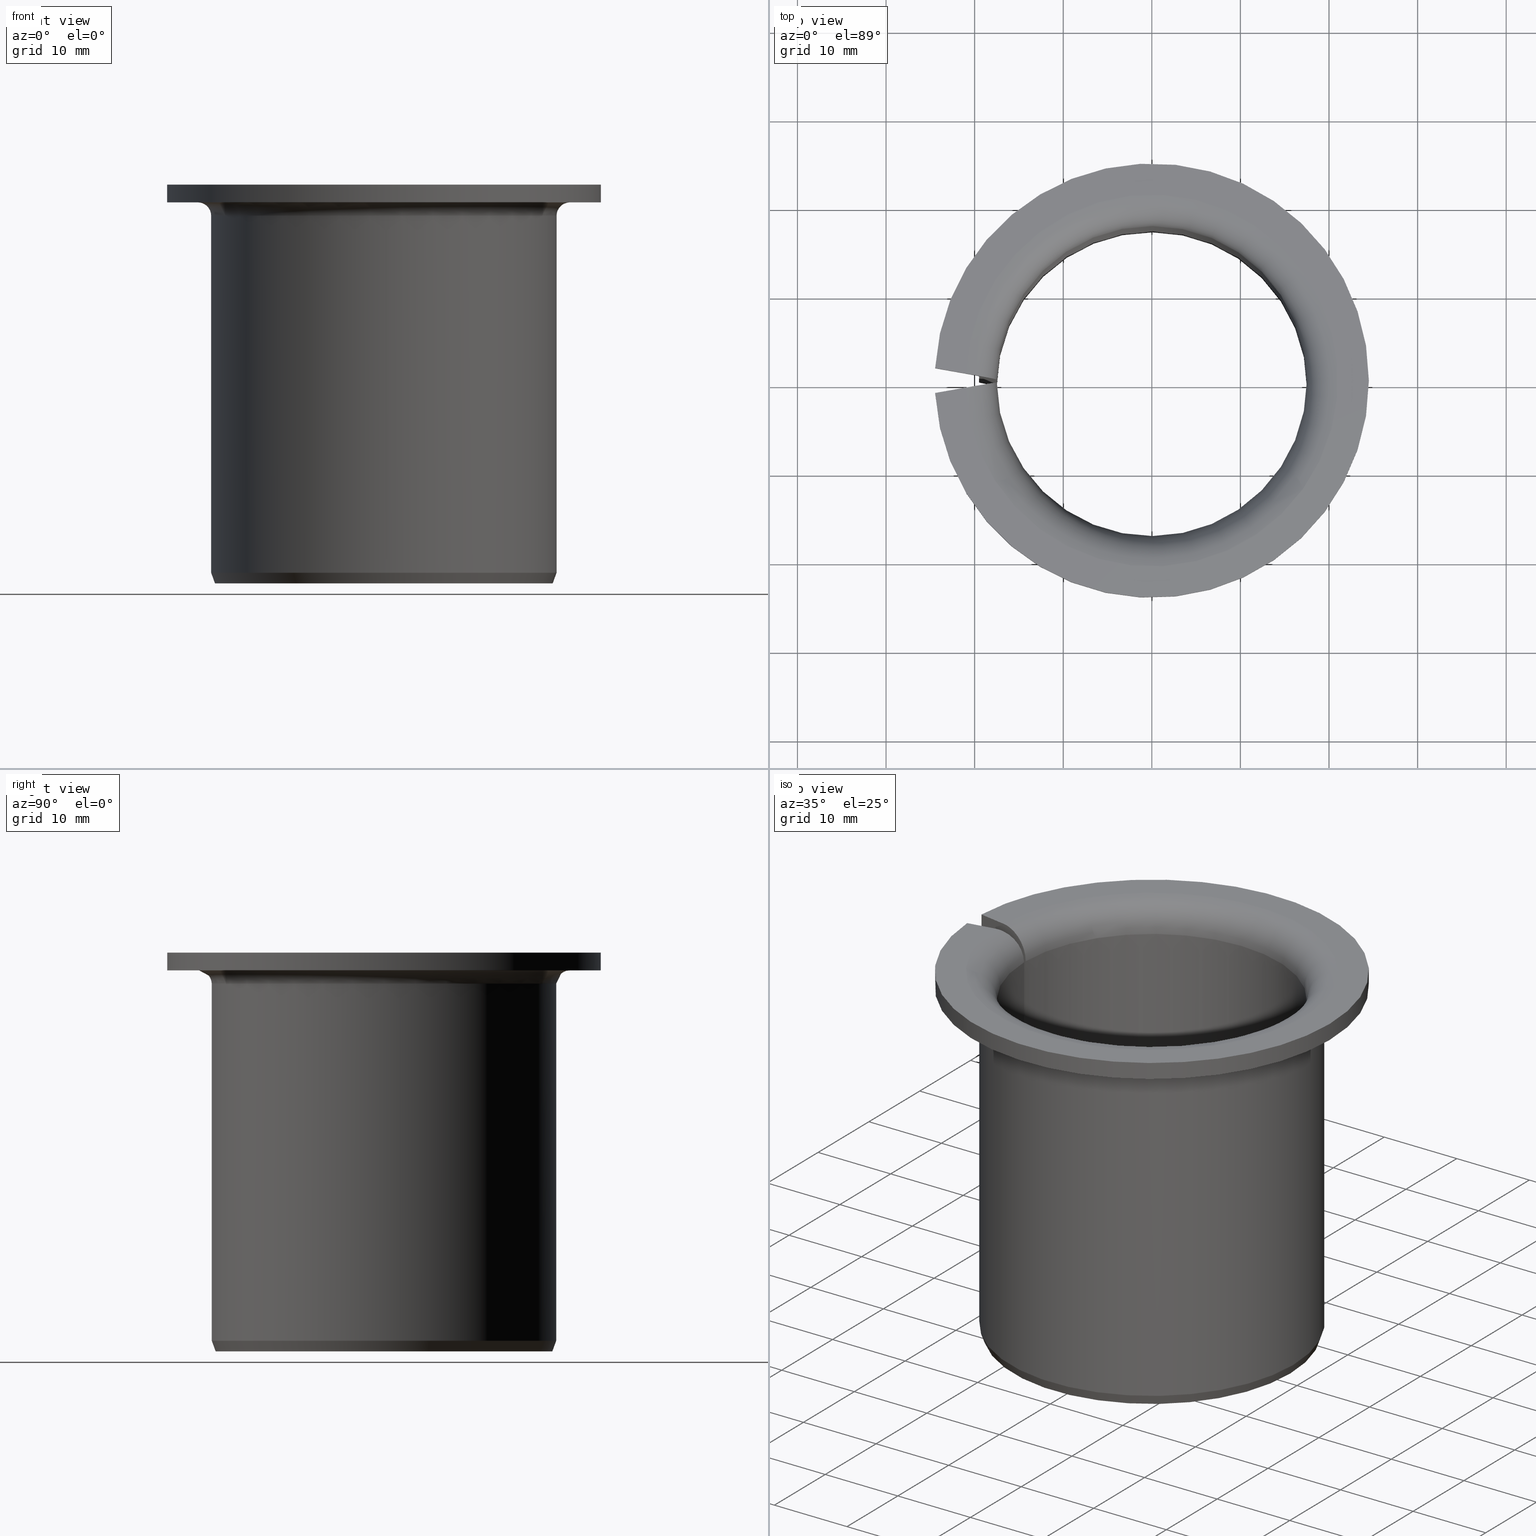
[diagram: canonical four-view strip — front | top / right | iso, engineering-drawing reading convention]
A machine part, canonical four-view strip (front | top / right | iso — engineering-drawing reading convention). The complete STEP part file that produces these views, byte-faithful:
ISO-10303-21;
HEADER;
FILE_DESCRIPTION(('STEP AP203'),'1');
FILE_NAME('410-BM3545F49LMB.stp','2016-09-19T15:15:20',(' '),(' '),'Spatial InterOp 3D',' ',' ');
FILE_SCHEMA(('CONFIG_CONTROL_DESIGN'));
ENDSEC;
DATA;
#1=DESIGN_CONTEXT('',#51,'design');
#2=APPLICATION_PROTOCOL_DEFINITION('INTERNATIONAL STANDARD','config_control_design',1994,#51);
#3=PRODUCT_CATEGORY_RELATIONSHIP('NONE','NONE',#52,#53);
#4=DATE_AND_TIME(#54,#55);
#5=DATE_TIME_ROLE('creation_date');
#6=DATE_TIME_ROLE('classification_date');
#7=PERSON_AND_ORGANIZATION_ROLE('creator');
#8=PERSON_AND_ORGANIZATION_ROLE('design_supplier');
#9=PERSON_AND_ORGANIZATION_ROLE('classification_officer');
#10=PERSON_AND_ORGANIZATION_ROLE('design_owner');
#11=APPROVAL_PERSON_ORGANIZATION(#56,#57,#58);
#12=APPROVAL_DATE_TIME(#4,#57);
#13=CC_DESIGN_APPROVAL(#57,(#59,#60,#61));
#14=CC_DESIGN_DATE_AND_TIME_ASSIGNMENT(#4,#5,(#61));
#15=CC_DESIGN_DATE_AND_TIME_ASSIGNMENT(#4,#6,(#59));
#16=CC_DESIGN_PERSON_AND_ORGANIZATION_ASSIGNMENT(#56,#10,(#62));
#17=CC_DESIGN_PERSON_AND_ORGANIZATION_ASSIGNMENT(#56,#7,(#61));
#18=CC_DESIGN_PERSON_AND_ORGANIZATION_ASSIGNMENT(#56,#7,(#60));
#19=CC_DESIGN_PERSON_AND_ORGANIZATION_ASSIGNMENT(#56,#8,(#60));
#20=CC_DESIGN_SECURITY_CLASSIFICATION(#59,(#60));
#21=CC_DESIGN_PERSON_AND_ORGANIZATION_ASSIGNMENT(#56,#9,(#59));
#22=SHAPE_DEFINITION_REPRESENTATION(#63,#64);
#23=DESIGN_CONTEXT('',#65,'design');
#24=APPLICATION_PROTOCOL_DEFINITION('INTERNATIONAL STANDARD','config_control_design',1994,#65);
#25=PRODUCT_CATEGORY_RELATIONSHIP('NONE','NONE',#66,#67);
#26=DATE_AND_TIME(#68,#69);
#27=DATE_TIME_ROLE('creation_date');
#28=DATE_TIME_ROLE('classification_date');
#29=PERSON_AND_ORGANIZATION_ROLE('creator');
#30=PERSON_AND_ORGANIZATION_ROLE('design_supplier');
#31=PERSON_AND_ORGANIZATION_ROLE('classification_officer');
#32=PERSON_AND_ORGANIZATION_ROLE('design_owner');
#33=APPROVAL_PERSON_ORGANIZATION(#70,#71,#72);
#34=APPROVAL_DATE_TIME(#26,#71);
#35=CC_DESIGN_APPROVAL(#71,(#73,#74,#75));
#36=CC_DESIGN_DATE_AND_TIME_ASSIGNMENT(#26,#27,(#75));
#37=CC_DESIGN_DATE_AND_TIME_ASSIGNMENT(#26,#28,(#73));
#38=CC_DESIGN_PERSON_AND_ORGANIZATION_ASSIGNMENT(#70,#32,(#76));
#39=CC_DESIGN_PERSON_AND_ORGANIZATION_ASSIGNMENT(#70,#29,(#75));
#40=CC_DESIGN_PERSON_AND_ORGANIZATION_ASSIGNMENT(#70,#29,(#74));
#41=CC_DESIGN_PERSON_AND_ORGANIZATION_ASSIGNMENT(#70,#30,(#74));
#42=CC_DESIGN_SECURITY_CLASSIFICATION(#73,(#74));
#43=CC_DESIGN_PERSON_AND_ORGANIZATION_ASSIGNMENT(#70,#31,(#73));
#44=CONTEXT_DEPENDENT_SHAPE_REPRESENTATION(#77,#78);
#45=SHAPE_DEFINITION_REPRESENTATION(#79,#80);
#46=SHAPE_REPRESENTATION_RELATIONSHIP('NONE','NONE',#80,#81);
#47= (GEOMETRIC_REPRESENTATION_CONTEXT(3)GLOBAL_UNCERTAINTY_ASSIGNED_CONTEXT((#84))GLOBAL_UNIT_ASSIGNED_CONTEXT((#86,#87,#88))REPRESENTATION_CONTEXT('NONE','WORKSPACE'));
#51=APPLICATION_CONTEXT('CONFIGURATION CONTROLLED 3D DESIGNS OF MECHANICAL PARTS AND ASSEMBLIES');
#52=PRODUCT_CATEGORY('part','NONE');
#53=PRODUCT_RELATED_PRODUCT_CATEGORY('detail',' ',(#62));
#54=CALENDAR_DATE(2016,19,8);
#55=LOCAL_TIME(17,15,20.0,#90);
#56=PERSON_AND_ORGANIZATION(#91,#92);
#57=APPROVAL(#93,'SOLID MODEL');
#58=APPROVAL_ROLE('APPROVED');
#59=SECURITY_CLASSIFICATION('','',#94);
#60=PRODUCT_DEFINITION_FORMATION_WITH_SPECIFIED_SOURCE(' ','NONE',#62,.NOT_KNOWN.);
#61=PRODUCT_DEFINITION('NONE','NONE',#60,#1);
#62=PRODUCT('','','PART--DESC',(#95));
#63=PRODUCT_DEFINITION_SHAPE('NONE','NONE',#61);
#64=SHAPE_REPRESENTATION('',(#96,#97),#98);
#65=APPLICATION_CONTEXT('CONFIGURATION CONTROLLED 3D DESIGNS OF MECHANICAL PARTS AND ASSEMBLIES');
#66=PRODUCT_CATEGORY('part','NONE');
#67=PRODUCT_RELATED_PRODUCT_CATEGORY('detail',' ',(#76));
#68=CALENDAR_DATE(2016,19,8);
#69=LOCAL_TIME(17,15,20.0,#99);
#70=PERSON_AND_ORGANIZATION(#100,#101);
#71=APPROVAL(#102,'SOLID MODEL');
#72=APPROVAL_ROLE('APPROVED');
#73=SECURITY_CLASSIFICATION('','',#103);
#74=PRODUCT_DEFINITION_FORMATION_WITH_SPECIFIED_SOURCE(' ','NONE',#76,.NOT_KNOWN.);
#75=PRODUCT_DEFINITION('410-BM3545F49LMB','410-BM3545F49LMB',#74,#23);
#76=PRODUCT('410-BM3545F49LMB','410-BM3545F49LMB','PART-410-BM3545F49LMB-DESC',(#104));
#77=(REPRESENTATION_RELATIONSHIP('','',#80,#64)REPRESENTATION_RELATIONSHIP_WITH_TRANSFORMATION(#107)SHAPE_REPRESENTATION_RELATIONSHIP());
#78=PRODUCT_DEFINITION_SHAPE('NAUO-PROD-DEF','NAUO-PROD-DEF',#109);
#79=PRODUCT_DEFINITION_SHAPE('NONE','NONE',#75);
#80=SHAPE_REPRESENTATION('410-BM3545F49LMB',(#96),#98);
#81=ADVANCED_BREP_SHAPE_REPRESENTATION('',(#110),#47);
#84=UNCERTAINTY_MEASURE_WITH_UNIT(LENGTH_MEASURE(1.0E-006),#86,'','');
#86= (CONVERSION_BASED_UNIT('METRE',#113)LENGTH_UNIT()NAMED_UNIT(#116));
#87= (NAMED_UNIT(#118)PLANE_ANGLE_UNIT()SI_UNIT($,.RADIAN.));
#88= (NAMED_UNIT(#118)SOLID_ANGLE_UNIT()SI_UNIT($,.STERADIAN.));
#90=COORDINATED_UNIVERSAL_TIME_OFFSET(1,0,.AHEAD.);
#91=PERSON('','UNSPECIFIED',$,$,$,$);
#92=ORGANIZATION('UNSPECIFIED','UNSPECIFIED','UNSPECIFIED');
#93=APPROVAL_STATUS('approved');
#94=SECURITY_CLASSIFICATION_LEVEL('unclassified');
#95=MECHANICAL_CONTEXT('',#51,'mechanical');
#96=AXIS2_PLACEMENT_3D('',#124,#125,#126);
#97=AXIS2_PLACEMENT_3D('',#127,#128,#129);
#98= (GEOMETRIC_REPRESENTATION_CONTEXT(3)GLOBAL_UNCERTAINTY_ASSIGNED_CONTEXT((#132))GLOBAL_UNIT_ASSIGNED_CONTEXT((#134,#135,#136))REPRESENTATION_CONTEXT('NONE','WORKSPACE'));
#99=COORDINATED_UNIVERSAL_TIME_OFFSET(1,0,.AHEAD.);
#100=PERSON('','UNSPECIFIED',$,$,$,$);
#101=ORGANIZATION('UNSPECIFIED','UNSPECIFIED','UNSPECIFIED');
#102=APPROVAL_STATUS('approved');
#103=SECURITY_CLASSIFICATION_LEVEL('unclassified');
#104=MECHANICAL_CONTEXT('',#65,'mechanical');
#107=ITEM_DEFINED_TRANSFORMATION('','',#96,#97);
#109=NEXT_ASSEMBLY_USAGE_OCCURRENCE('410-BM3545F49LMB','410-BM3545F49LMB','410-BM3545F49LMB',#61,#75,$);
#110=MANIFOLD_SOLID_BREP('',#138);
#113=LENGTH_MEASURE_WITH_UNIT(LENGTH_MEASURE(1.0),#139);
#116=DIMENSIONAL_EXPONENTS(1.0,0.0,0.0,0.0,0.0,0.0,0.0);
#118=DIMENSIONAL_EXPONENTS(0.0,0.0,0.0,0.0,0.0,0.0,0.0);
#124=CARTESIAN_POINT('',(0.0,0.0,0.0));
#125=DIRECTION('',(0.0,0.0,1.0));
#126=DIRECTION('',(1.0,0.0,0.0));
#127=CARTESIAN_POINT('',(0.0,0.0,0.0));
#128=DIRECTION('',(0.0,0.0,1.0));
#129=DIRECTION('',(-1.0,-7.6571373978539E-016,0.0));
#132=UNCERTAINTY_MEASURE_WITH_UNIT(LENGTH_MEASURE(1.0E-006),#134,'','');
#134= (CONVERSION_BASED_UNIT('METRE',#142)LENGTH_UNIT()NAMED_UNIT(#145));
#135= (NAMED_UNIT(#147)PLANE_ANGLE_UNIT()SI_UNIT($,.RADIAN.));
#136= (NAMED_UNIT(#147)SOLID_ANGLE_UNIT()SI_UNIT($,.STERADIAN.));
#138=CLOSED_SHELL('',(#153,#154,#155,#156,#157,#158,#159,#160,#161,#162,#163,#164));
#139= (NAMED_UNIT(#116)LENGTH_UNIT()SI_UNIT($,.METRE.));
#142=LENGTH_MEASURE_WITH_UNIT(LENGTH_MEASURE(1.0),#166);
#145=DIMENSIONAL_EXPONENTS(1.0,0.0,0.0,0.0,0.0,0.0,0.0);
#147=DIMENSIONAL_EXPONENTS(0.0,0.0,0.0,0.0,0.0,0.0,0.0);
#153=ADVANCED_FACE('',(#167),#168,.F.);
#154=ADVANCED_FACE('',(#169),#170,.F.);
#155=ADVANCED_FACE('',(#171),#172,.T.);
#156=ADVANCED_FACE('',(#173),#174,.F.);
#157=ADVANCED_FACE('',(#175),#176,.T.);
#158=ADVANCED_FACE('',(#177),#178,.T.);
#159=ADVANCED_FACE('',(#179),#180,.T.);
#160=ADVANCED_FACE('',(#181),#182,.T.);
#161=ADVANCED_FACE('',(#183),#184,.F.);
#162=ADVANCED_FACE('',(#185),#186,.T.);
#163=ADVANCED_FACE('',(#187),#188,.T.);
#164=ADVANCED_FACE('',(#189),#190,.T.);
#166= (NAMED_UNIT(#145)LENGTH_UNIT()SI_UNIT($,.METRE.));
#167=FACE_OUTER_BOUND('',#192,.T.);
#168=PLANE('',#193);
#169=FACE_OUTER_BOUND('',#194,.T.);
#170=CONICAL_SURFACE('',#195,0.0175,0.5235987755983);
#171=FACE_OUTER_BOUND('',#196,.T.);
#172=TOROIDAL_SURFACE('',#197,0.021,0.0035);
#173=FACE_OUTER_BOUND('',#198,.T.);
#174=TOROIDAL_SURFACE('',#199,0.021,0.0015);
#175=FACE_OUTER_BOUND('',#200,.T.);
#176=PLANE('',#201);
#177=FACE_OUTER_BOUND('',#202,.T.);
#178=CYLINDRICAL_SURFACE('',#203,0.0245);
#179=FACE_OUTER_BOUND('',#204,.T.);
#180=PLANE('',#205);
#181=FACE_OUTER_BOUND('',#206,.T.);
#182=CYLINDRICAL_SURFACE('',#207,0.0195);
#183=FACE_OUTER_BOUND('',#208,.T.);
#184=CYLINDRICAL_SURFACE('',#209,0.0175);
#185=FACE_OUTER_BOUND('',#210,.T.);
#186=PLANE('',#211);
#187=FACE_OUTER_BOUND('',#212,.T.);
#188=CONICAL_SURFACE('',#213,0.0190632357188806,0.349065850398868);
#189=FACE_OUTER_BOUND('',#214,.T.);
#190=PLANE('',#215);
#192=EDGE_LOOP('',(#216,#217,#218,#219,#220,#221,#222,#223,#224,#225));
#193=AXIS2_PLACEMENT_3D('',#226,#227,#228);
#194=EDGE_LOOP('',(#229,#230,#231,#232));
#195=AXIS2_PLACEMENT_3D('',#233,#234,#235);
#196=EDGE_LOOP('',(#236,#237,#238,#239));
#197=AXIS2_PLACEMENT_3D('',#240,#241,#242);
#198=EDGE_LOOP('',(#243,#244,#245,#246));
#199=AXIS2_PLACEMENT_3D('',#247,#248,#249);
#200=EDGE_LOOP('',(#250,#251,#252,#253));
#201=AXIS2_PLACEMENT_3D('',#254,#255,#256);
#202=EDGE_LOOP('',(#257,#258,#259,#260));
#203=AXIS2_PLACEMENT_3D('',#261,#262,#263);
#204=EDGE_LOOP('',(#264,#265,#266,#267));
#205=AXIS2_PLACEMENT_3D('',#268,#269,#270);
#206=EDGE_LOOP('',(#271,#272,#273,#274));
#207=AXIS2_PLACEMENT_3D('',#275,#276,#277);
#208=EDGE_LOOP('',(#278,#279,#280,#281));
#209=AXIS2_PLACEMENT_3D('',#282,#283,#284);
#210=EDGE_LOOP('',(#285,#286,#287,#288));
#211=AXIS2_PLACEMENT_3D('',#289,#290,#291);
#212=EDGE_LOOP('',(#292,#293,#294,#295));
#213=AXIS2_PLACEMENT_3D('',#296,#297,#298);
#214=EDGE_LOOP('',(#299,#300,#301,#302,#303,#304,#305,#306,#307,#308));
#215=AXIS2_PLACEMENT_3D('',#309,#310,#311);
#216=ORIENTED_EDGE('',*,*,#312,.T.);
#217=ORIENTED_EDGE('',*,*,#313,.F.);
#218=ORIENTED_EDGE('',*,*,#314,.T.);
#219=ORIENTED_EDGE('',*,*,#315,.T.);
#220=ORIENTED_EDGE('',*,*,#316,.T.);
#221=ORIENTED_EDGE('',*,*,#317,.T.);
#222=ORIENTED_EDGE('',*,*,#318,.T.);
#223=ORIENTED_EDGE('',*,*,#319,.F.);
#224=ORIENTED_EDGE('',*,*,#320,.T.);
#225=ORIENTED_EDGE('',*,*,#321,.T.);
#226=CARTESIAN_POINT('',(0.00579044144318367,0.00188838412504393,-8.38432005932489E-019));
#227=DIRECTION('',(-0.173648177666931,-0.984807753012208,7.70988211545248E-017));
#228=DIRECTION('',(-1.33880697937518E-017,-7.59275168210777E-017,-1.0));
#229=ORIENTED_EDGE('',*,*,#322,.T.);
#230=ORIENTED_EDGE('',*,*,#323,.T.);
#231=ORIENTED_EDGE('',*,*,#324,.F.);
#232=ORIENTED_EDGE('',*,*,#320,.F.);
#233=CARTESIAN_POINT('',(0.0,0.0,0.0005));
#234=DIRECTION('',(0.0,-6.12323399573677E-017,-1.0));
#235=DIRECTION('',(0.0,1.0,-6.12323399573677E-017));
#236=ORIENTED_EDGE('',*,*,#325,.T.);
#237=ORIENTED_EDGE('',*,*,#326,.T.);
#238=ORIENTED_EDGE('',*,*,#327,.F.);
#239=ORIENTED_EDGE('',*,*,#312,.F.);
#240=CARTESIAN_POINT('',(0.0,3.46944695195362E-018,0.0415));
#241=DIRECTION('',(0.0,-6.12323399573677E-017,-1.0));
#242=DIRECTION('',(0.0,1.0,-6.12323399573677E-017));
#243=ORIENTED_EDGE('',*,*,#328,.T.);
#244=ORIENTED_EDGE('',*,*,#329,.T.);
#245=ORIENTED_EDGE('',*,*,#330,.F.);
#246=ORIENTED_EDGE('',*,*,#316,.F.);
#247=CARTESIAN_POINT('',(0.0,3.46944695195362E-018,0.0415));
#248=DIRECTION('',(0.0,-6.12323399573677E-017,-1.0));
#249=DIRECTION('',(0.0,1.0,-6.12323399573677E-017));
#250=ORIENTED_EDGE('',*,*,#331,.T.);
#251=ORIENTED_EDGE('',*,*,#332,.T.);
#252=ORIENTED_EDGE('',*,*,#328,.F.);
#253=ORIENTED_EDGE('',*,*,#315,.F.);
#254=CARTESIAN_POINT('',(0.021,3.46944695195362E-018,0.043));
#255=DIRECTION('',(0.0,-6.12323399573677E-017,-1.0));
#256=DIRECTION('',(0.0,1.0,-6.12323399573677E-017));
#257=ORIENTED_EDGE('',*,*,#333,.T.);
#258=ORIENTED_EDGE('',*,*,#334,.T.);
#259=ORIENTED_EDGE('',*,*,#331,.F.);
#260=ORIENTED_EDGE('',*,*,#314,.F.);
#261=CARTESIAN_POINT('',(0.0,0.0,0.0));
#262=DIRECTION('',(0.0,-6.12323399573677E-017,-1.0));
#263=DIRECTION('',(0.0,1.0,-6.12323399573677E-017));
#264=ORIENTED_EDGE('',*,*,#327,.T.);
#265=ORIENTED_EDGE('',*,*,#335,.F.);
#266=ORIENTED_EDGE('',*,*,#333,.F.);
#267=ORIENTED_EDGE('',*,*,#313,.T.);
#268=CARTESIAN_POINT('',(0.0245,3.46944695195362E-018,0.045));
#269=DIRECTION('',(0.0,6.12323399573677E-017,1.0));
#270=DIRECTION('',(0.0,-1.0,6.12323399573677E-017));
#271=ORIENTED_EDGE('',*,*,#330,.T.);
#272=ORIENTED_EDGE('',*,*,#336,.T.);
#273=ORIENTED_EDGE('',*,*,#337,.F.);
#274=ORIENTED_EDGE('',*,*,#317,.F.);
#275=CARTESIAN_POINT('',(0.0,0.0,0.0));
#276=DIRECTION('',(0.0,-6.12323399573677E-017,-1.0));
#277=DIRECTION('',(0.0,1.0,-6.12323399573677E-017));
#278=ORIENTED_EDGE('',*,*,#324,.T.);
#279=ORIENTED_EDGE('',*,*,#338,.T.);
#280=ORIENTED_EDGE('',*,*,#325,.F.);
#281=ORIENTED_EDGE('',*,*,#321,.F.);
#282=CARTESIAN_POINT('',(0.0,0.0,0.0));
#283=DIRECTION('',(0.0,-6.12323399573677E-017,-1.0));
#284=DIRECTION('',(0.0,1.0,-6.12323399573677E-017));
#285=ORIENTED_EDGE('',*,*,#339,.T.);
#286=ORIENTED_EDGE('',*,*,#340,.F.);
#287=ORIENTED_EDGE('',*,*,#322,.F.);
#288=ORIENTED_EDGE('',*,*,#319,.T.);
#289=CARTESIAN_POINT('',(0.0177886751345948,0.0,-1.40641510942143E-020));
#290=DIRECTION('',(0.0,-6.12323399573677E-017,-1.0));
#291=DIRECTION('',(0.0,1.0,-6.12323399573677E-017));
#292=ORIENTED_EDGE('',*,*,#337,.T.);
#293=ORIENTED_EDGE('',*,*,#341,.T.);
#294=ORIENTED_EDGE('',*,*,#339,.F.);
#295=ORIENTED_EDGE('',*,*,#318,.F.);
#296=CARTESIAN_POINT('',(0.0,0.0,-2.81283021884286E-020));
#297=DIRECTION('',(-0.0,6.12323399573677E-017,1.0));
#298=DIRECTION('',(0.0,-1.0,6.12323399573677E-017));
#299=ORIENTED_EDGE('',*,*,#338,.F.);
#300=ORIENTED_EDGE('',*,*,#323,.F.);
#301=ORIENTED_EDGE('',*,*,#340,.T.);
#302=ORIENTED_EDGE('',*,*,#341,.F.);
#303=ORIENTED_EDGE('',*,*,#336,.F.);
#304=ORIENTED_EDGE('',*,*,#329,.F.);
#305=ORIENTED_EDGE('',*,*,#332,.F.);
#306=ORIENTED_EDGE('',*,*,#334,.F.);
#307=ORIENTED_EDGE('',*,*,#335,.T.);
#308=ORIENTED_EDGE('',*,*,#326,.F.);
#309=CARTESIAN_POINT('',(0.00579044144318367,-0.00188838412504393,-6.10685012971472E-019));
#310=DIRECTION('',(0.173648177666931,-0.984807753012208,7.34060592085496E-017));
#311=DIRECTION('',(-7.87769870200591E-018,-7.59275168210776E-017,-1.0));
#312=EDGE_CURVE('',#342,#343,#344,.T.);
#313=EDGE_CURVE('',#345,#343,#346,.T.);
#314=EDGE_CURVE('',#345,#347,#348,.T.);
#315=EDGE_CURVE('',#347,#349,#350,.T.);
#316=EDGE_CURVE('',#349,#351,#352,.T.);
#317=EDGE_CURVE('',#351,#353,#354,.T.);
#318=EDGE_CURVE('',#353,#355,#356,.T.);
#319=EDGE_CURVE('',#357,#355,#358,.T.);
#320=EDGE_CURVE('',#357,#359,#360,.T.);
#321=EDGE_CURVE('',#359,#342,#361,.F.);
#322=EDGE_CURVE('',#357,#362,#363,.T.);
#323=EDGE_CURVE('',#362,#364,#365,.T.);
#324=EDGE_CURVE('',#359,#364,#366,.T.);
#325=EDGE_CURVE('',#342,#367,#368,.T.);
#326=EDGE_CURVE('',#367,#369,#370,.T.);
#327=EDGE_CURVE('',#343,#369,#371,.T.);
#328=EDGE_CURVE('',#349,#372,#373,.T.);
#329=EDGE_CURVE('',#372,#374,#375,.T.);
#330=EDGE_CURVE('',#351,#374,#376,.T.);
#331=EDGE_CURVE('',#347,#377,#378,.T.);
#332=EDGE_CURVE('',#377,#372,#379,.T.);
#333=EDGE_CURVE('',#345,#380,#381,.T.);
#334=EDGE_CURVE('',#380,#377,#382,.T.);
#335=EDGE_CURVE('',#380,#369,#383,.T.);
#336=EDGE_CURVE('',#374,#384,#385,.T.);
#337=EDGE_CURVE('',#353,#384,#386,.T.);
#338=EDGE_CURVE('',#364,#367,#387,.F.);
#339=EDGE_CURVE('',#355,#388,#389,.T.);
#340=EDGE_CURVE('',#362,#388,#390,.T.);
#341=EDGE_CURVE('',#384,#388,#391,.T.);
#342=VERTEX_POINT('',#392);
#343=VERTEX_POINT('',#393);
#344=B_SPLINE_CURVE_WITH_KNOTS('',3,(#394,#395,#396,#397,#398,#399,#400,#401,#402,#403,#404,#405,#406,#407,#408,#409,#410,#411),.UNSPECIFIED.,.F.,.F.,(4,2,2,2,2,2,2,2,4),(1.97144213445343E-007,0.000687440077086563,0.00137468300995968,0.0020619259428328,0.00274916887570591,0.00343641180857903,0.00412365474145215,0.00481089767432527,0.00549814060719838),.UNSPECIFIED.);
#345=VERTEX_POINT('',#412);
#346=LINE('',#413,#414);
#347=VERTEX_POINT('',#415);
#348=LINE('',#416,#417);
#349=VERTEX_POINT('',#418);
#350=LINE('',#419,#420);
#351=VERTEX_POINT('',#421);
#352=B_SPLINE_CURVE_WITH_KNOTS('',3,(#422,#423,#424,#425,#426,#427,#428,#429,#430,#431,#432,#433,#434,#435),.UNSPECIFIED.,.F.,.F.,(4,2,2,2,2,2,4),(1.51253615729084E-005,0.000309526954499271,0.000603928547425633,0.000898330140351995,0.00119273173327836,0.00178153491913109,0.00237033810498382),.UNSPECIFIED.);
#353=VERTEX_POINT('',#436);
#354=LINE('',#437,#438);
#355=VERTEX_POINT('',#439);
#356=B_SPLINE_CURVE_WITH_KNOTS('',3,(#440,#441,#442,#443),.UNSPECIFIED.,.F.,.F.,(4,4),(2.13110061065573E-007,0.00127891205483751),.UNSPECIFIED.);
#357=VERTEX_POINT('',#444);
#358=LINE('',#445,#446);
#359=VERTEX_POINT('',#447);
#360=B_SPLINE_CURVE_WITH_KNOTS('',3,(#448,#449,#450,#451),.UNSPECIFIED.,.F.,.F.,(4,4),(2.31707683946212E-007,0.000579533393781442),.UNSPECIFIED.);
#361=LINE('',#452,#453);
#362=VERTEX_POINT('',#454);
#363=CIRCLE('',#455,0.0177886751345948);
#364=VERTEX_POINT('',#456);
#365=B_SPLINE_CURVE_WITH_KNOTS('',3,(#457,#458,#459,#460),.UNSPECIFIED.,.F.,.F.,(4,4),(2.3170768394626E-007,0.000579533393781442),.UNSPECIFIED.);
#366=CIRCLE('',#461,0.0175);
#367=VERTEX_POINT('',#462);
#368=CIRCLE('',#463,0.0175);
#369=VERTEX_POINT('',#464);
#370=B_SPLINE_CURVE_WITH_KNOTS('',3,(#465,#466,#467,#468,#469,#470,#471,#472,#473,#474,#475,#476,#477,#478,#479,#480,#481,#482),.UNSPECIFIED.,.F.,.F.,(4,2,2,2,2,2,2,2,4),(1.97144213445343E-007,0.000687440077086563,0.00137468300995968,0.0020619259428328,0.00274916887570591,0.00343641180857903,0.00412365474145215,0.00481089767432527,0.00549814060719838),.UNSPECIFIED.);
#371=CIRCLE('',#483,0.021);
#372=VERTEX_POINT('',#484);
#373=CIRCLE('',#485,0.021);
#374=VERTEX_POINT('',#486);
#375=B_SPLINE_CURVE_WITH_KNOTS('',3,(#487,#488,#489,#490,#491,#492,#493,#494,#495,#496,#497,#498,#499,#500),.UNSPECIFIED.,.F.,.F.,(4,2,2,2,2,2,4),(1.5125361572905E-005,0.000309526954499271,0.000603928547425637,0.000898330140352003,0.00119273173327837,0.00178153491913109,0.00237033810498382),.UNSPECIFIED.);
#376=CIRCLE('',#501,0.0195);
#377=VERTEX_POINT('',#502);
#378=CIRCLE('',#503,0.0245);
#379=LINE('',#504,#505);
#380=VERTEX_POINT('',#506);
#381=CIRCLE('',#507,0.0245);
#382=LINE('',#508,#509);
#383=LINE('',#510,#511);
#384=VERTEX_POINT('',#512);
#385=LINE('',#513,#514);
#386=CIRCLE('',#515,0.0195);
#387=LINE('',#516,#517);
#388=VERTEX_POINT('',#518);
#389=CIRCLE('',#519,0.0190632357188806);
#390=LINE('',#520,#521);
#391=B_SPLINE_CURVE_WITH_KNOTS('',3,(#522,#523,#524,#525),.UNSPECIFIED.,.F.,.F.,(4,4),(2.13110061065573E-007,0.00127891205483751),.UNSPECIFIED.);
#392=CARTESIAN_POINT('',(0.0174991132321836,-0.00017617061961681,0.0415));
#393=CARTESIAN_POINT('',(0.0209851033973357,-0.000790844740217479,0.045));
#394=CARTESIAN_POINT('',(0.0174991132321836,-0.00017617061961681,0.0415));
#395=CARTESIAN_POINT('',(0.0174991132321836,-0.00017617061961681,0.0417323982433262));
#396=CARTESIAN_POINT('',(0.0175219915246278,-0.000180204679847264,0.0419608286907469));
#397=CARTESIAN_POINT('',(0.0176115516317167,-0.000195996543122176,0.0424100927146044));
#398=CARTESIAN_POINT('',(0.0176793702412228,-0.000207954793772221,0.0426333091566987));
#399=CARTESIAN_POINT('',(0.0178558280399616,-0.000239069064646299,0.0430579143322747));
#400=CARTESIAN_POINT('',(0.0179637108656093,-0.000258091717563064,0.0432591604718311));
#401=CARTESIAN_POINT('',(0.0182183242230214,-0.000302986922123581,0.0436397987129509));
#402=CARTESIAN_POINT('',(0.0183660376656832,-0.000329032787478187,0.0438194058246123));
#403=CARTESIAN_POINT('',(0.0186881199836871,-0.000385824590151397,0.0441411182028783));
#404=CARTESIAN_POINT('',(0.0188637408973689,-0.000416791295610176,0.0442854588727117));
#405=CARTESIAN_POINT('',(0.0192448446075499,-0.000483990162163181,0.0445403135456875));
#406=CARTESIAN_POINT('',(0.0194463331129644,-0.00051951802197039,0.0446478702901084));
#407=CARTESIAN_POINT('',(0.0198640024898423,-0.000593164402129645,0.0448212989317011));
#408=CARTESIAN_POINT('',(0.0200828561623802,-0.000631754209425211,0.0448881397067106));
#409=CARTESIAN_POINT('',(0.0205302421854552,-0.000710640436085193,0.0449775381628516));
#410=CARTESIAN_POINT('',(0.0207564185715369,-0.000750521435350542,0.045));
#411=CARTESIAN_POINT('',(0.0209851033973357,-0.000790844740217481,0.045));
#412=CARTESIAN_POINT('',(0.0244597654861355,-0.00140352141531771,0.045));
#413=CARTESIAN_POINT('',(0.0302873085421709,-0.00243107448733702,0.045));
#414=VECTOR('',#526,1.0);
#415=CARTESIAN_POINT('',(0.0244597654861355,-0.00140352141531771,0.043));
#416=CARTESIAN_POINT('',(0.0244597654861355,-0.00140352141531771,3.78149717724513E-020));
#417=VECTOR('',#527,1.0);
#418=CARTESIAN_POINT('',(0.0209851033973357,-0.000790844740217477,0.043));
#419=CARTESIAN_POINT('',(0.0208643083967683,-0.000769545322482749,0.043));
#420=VECTOR('',#528,1.0);
#421=CARTESIAN_POINT('',(0.0194928579205826,-0.00052772160082575,0.0415));
#422=CARTESIAN_POINT('',(0.0209851033973357,-0.00079084474021748,0.043));
#423=CARTESIAN_POINT('',(0.020887234603486,-0.000773587831292375,0.043));
#424=CARTESIAN_POINT('',(0.0207908761436344,-0.000756597235001041,0.0429904013861209));
#425=CARTESIAN_POINT('',(0.0206010739036773,-0.000723129979097698,0.0429526805169067));
#426=CARTESIAN_POINT('',(0.0205066387155741,-0.000706478507506823,0.0429240876814515));
#427=CARTESIAN_POINT('',(0.0203266420344327,-0.000674740236183612,0.0428494867840182));
#428=CARTESIAN_POINT('',(0.0202411221118634,-0.000659660766446539,0.0428037852975727));
#429=CARTESIAN_POINT('',(0.0200790171185027,-0.000631077282409482,0.0426956214893007));
#430=CARTESIAN_POINT('',(0.0200021474508167,-0.000617523085998349,0.0426325952962743));
#431=CARTESIAN_POINT('',(0.0197951778992534,-0.00058102876987261,0.0424257879324392));
#432=CARTESIAN_POINT('',(0.0196832067906457,-0.00056128524236524,0.0422585812978061));
#433=CARTESIAN_POINT('',(0.0195329495153544,-0.00053479083068364,0.0418969470921935));
#434=CARTESIAN_POINT('',(0.0194928579205806,-0.000527721600825395,0.0416991392971471));
#435=CARTESIAN_POINT('',(0.0194928579205806,-0.00052772160082539,0.0415000000000002));
#436=CARTESIAN_POINT('',(0.0194928579205826,-0.000527721600825753,0.0012));
#437=CARTESIAN_POINT('',(0.0194928579205826,-0.000527721600825752,-1.58123002031201E-020));
#438=VECTOR('',#529,1.0);
#439=CARTESIAN_POINT('',(0.0190578994383718,-0.000451026684923966,6.43083039248804E-019));
#440=CARTESIAN_POINT('',(0.0194928579205827,-0.000527721600825755,0.0012));
#441=CARTESIAN_POINT('',(0.0193479040463929,-0.000502162321847883,0.000799987934916398));
#442=CARTESIAN_POINT('',(0.0192029186392597,-0.000476597482761293,0.000399987650145253));
#443=CARTESIAN_POINT('',(0.0190578994383717,-0.000451026684923968,4.89730107023086E-018));
#444=CARTESIAN_POINT('',(0.0177872270566494,-0.000226972860385233,6.43083039248804E-019));
#445=CARTESIAN_POINT('',(0.0165,0.0,6.43083039248804E-019));
#446=VECTOR('',#530,1.0);
#447=CARTESIAN_POINT('',(0.0174991132321836,-0.000176170619616813,0.0005));
#448=CARTESIAN_POINT('',(0.0177872270566494,-0.000226972860385233,-3.34519270381092E-019));
#449=CARTESIAN_POINT('',(0.0176912048363039,-0.000210041552190785,0.000166676006251675));
#450=CARTESIAN_POINT('',(0.0175951671585202,-0.00019310751843293,0.000333342831684055));
#451=CARTESIAN_POINT('',(0.0174991132321836,-0.000176170619616813,0.000500000000000008));
#452=CARTESIAN_POINT('',(0.0174991132321836,-0.000176170619616813,-3.7338589396852E-020));
#453=VECTOR('',#531,1.0);
#454=CARTESIAN_POINT('',(0.0177872270566494,0.000226972860385233,6.15709166660622E-019));
#455=AXIS2_PLACEMENT_3D('',#532,#533,#534);
#456=CARTESIAN_POINT('',(0.0174991132321836,0.000176170619616813,0.0005));
#457=CARTESIAN_POINT('',(0.0177872270566494,0.000226972860385233,-3.54897581537848E-019));
#458=CARTESIAN_POINT('',(0.0176912048363039,0.000210041552190786,0.000166676006251675));
#459=CARTESIAN_POINT('',(0.0175951671585202,0.00019310751843293,0.000333342831684055));
#460=CARTESIAN_POINT('',(0.0174991132321836,0.000176170619616813,0.000500000000000008));
#461=AXIS2_PLACEMENT_3D('',#535,#536,#537);
#462=CARTESIAN_POINT('',(0.0174991132321836,0.000176170619616816,0.0415));
#463=AXIS2_PLACEMENT_3D('',#538,#539,#540);
#464=CARTESIAN_POINT('',(0.0209851033973357,0.000790844740217487,0.045));
#465=CARTESIAN_POINT('',(0.0174991132321836,0.000176170619616817,0.0415));
#466=CARTESIAN_POINT('',(0.0174991132321836,0.000176170619616817,0.0417323982433262));
#467=CARTESIAN_POINT('',(0.0175219915246278,0.00018020467984727,0.0419608286907469));
#468=CARTESIAN_POINT('',(0.0176115516317167,0.000195996543122183,0.0424100927146044));
#469=CARTESIAN_POINT('',(0.0176793702412228,0.000207954793772227,0.0426333091566987));
#470=CARTESIAN_POINT('',(0.0178558280399616,0.000239069064646306,0.0430579143322747));
#471=CARTESIAN_POINT('',(0.0179637108656093,0.00025809171756307,0.0432591604718311));
#472=CARTESIAN_POINT('',(0.0182183242230214,0.000302986922123587,0.0436397987129509));
#473=CARTESIAN_POINT('',(0.0183660376656832,0.000329032787478194,0.0438194058246123));
#474=CARTESIAN_POINT('',(0.0186881199836871,0.000385824590151403,0.0441411182028783));
#475=CARTESIAN_POINT('',(0.0188637408973689,0.000416791295610183,0.0442854588727117));
#476=CARTESIAN_POINT('',(0.0192448446075499,0.000483990162163188,0.0445403135456875));
#477=CARTESIAN_POINT('',(0.0194463331129644,0.000519518021970397,0.0446478702901084));
#478=CARTESIAN_POINT('',(0.0198640024898423,0.000593164402129652,0.0448212989317011));
#479=CARTESIAN_POINT('',(0.0200828561623802,0.000631754209425218,0.0448881397067106));
#480=CARTESIAN_POINT('',(0.0205302421854552,0.0007106404360852,0.0449775381628516));
#481=CARTESIAN_POINT('',(0.0207564185715369,0.000750521435350548,0.045));
#482=CARTESIAN_POINT('',(0.0209851033973357,0.000790844740217488,0.045));
#483=AXIS2_PLACEMENT_3D('',#541,#542,#543);
#484=CARTESIAN_POINT('',(0.0209851033973357,0.000790844740217485,0.043));
#485=AXIS2_PLACEMENT_3D('',#544,#545,#546);
#486=CARTESIAN_POINT('',(0.0194928579205826,0.000527721600825756,0.0415));
#487=CARTESIAN_POINT('',(0.0209851033973357,0.000790844740217488,0.043));
#488=CARTESIAN_POINT('',(0.020887234603486,0.000773587831292382,0.043));
#489=CARTESIAN_POINT('',(0.0207908761436344,0.000756597235001048,0.0429904013861209));
#490=CARTESIAN_POINT('',(0.0206010739036773,0.000723129979097705,0.0429526805169067));
#491=CARTESIAN_POINT('',(0.0205066387155741,0.000706478507506831,0.0429240876814515));
#492=CARTESIAN_POINT('',(0.0203266420344327,0.000674740236183619,0.0428494867840181));
#493=CARTESIAN_POINT('',(0.0202411221118634,0.000659660766446547,0.0428037852975727));
#494=CARTESIAN_POINT('',(0.0200790171185027,0.000631077282409489,0.0426956214893007));
#495=CARTESIAN_POINT('',(0.0200021474508167,0.000617523085998355,0.0426325952962743));
#496=CARTESIAN_POINT('',(0.0197951778992534,0.000581028769872617,0.0424257879324392));
#497=CARTESIAN_POINT('',(0.0196832067906457,0.000561285242365247,0.0422585812978061));
#498=CARTESIAN_POINT('',(0.0195329495153544,0.000534790830683647,0.0418969470921935));
#499=CARTESIAN_POINT('',(0.0194928579205806,0.000527721600825401,0.0416991392971471));
#500=CARTESIAN_POINT('',(0.0194928579205806,0.000527721600825396,0.0415000000000002));
#501=AXIS2_PLACEMENT_3D('',#547,#548,#549);
#502=CARTESIAN_POINT('',(0.0244597654861355,0.00140352141531772,0.043));
#503=AXIS2_PLACEMENT_3D('',#550,#551,#552);
#504=CARTESIAN_POINT('',(0.0208643083967683,0.000769545322482756,0.043));
#505=VECTOR('',#553,1.0);
#506=CARTESIAN_POINT('',(0.0244597654861355,0.00140352141531772,0.045));
#507=AXIS2_PLACEMENT_3D('',#554,#555,#556);
#508=CARTESIAN_POINT('',(0.0244597654861355,0.00140352141531772,-4.83954545833115E-020));
#509=VECTOR('',#557,1.0);
#510=CARTESIAN_POINT('',(0.0302873085421709,0.00243107448733703,0.045));
#511=VECTOR('',#558,1.0);
#512=CARTESIAN_POINT('',(0.0194928579205826,0.000527721600825755,0.0012));
#513=CARTESIAN_POINT('',(0.0194928579205826,0.000527721600825753,5.23181739225989E-021));
#514=VECTOR('',#559,1.0);
#515=AXIS2_PLACEMENT_3D('',#560,#561,#562);
#516=CARTESIAN_POINT('',(0.0174991132321836,0.000176170619616814,2.67581065859919E-020));
#517=VECTOR('',#563,1.0);
#518=CARTESIAN_POINT('',(0.0190578994383718,0.000451026684923967,-5.57457214895375E-020));
#519=AXIS2_PLACEMENT_3D('',#564,#565,#566);
#520=CARTESIAN_POINT('',(0.0165,0.0,6.43083039248804E-019));
#521=VECTOR('',#567,1.0);
#522=CARTESIAN_POINT('',(0.0194928579205827,0.000527721600825755,0.0012));
#523=CARTESIAN_POINT('',(0.0193479040463929,0.000502162321847883,0.000799987934916398));
#524=CARTESIAN_POINT('',(0.0192029186392597,0.000476597482761293,0.000399987650145253));
#525=CARTESIAN_POINT('',(0.0190578994383717,0.000451026684923968,4.76385711392694E-018));
#526=DIRECTION('',(-0.984807753012208,0.173648177666931,0.0));
#527=DIRECTION('',(0.0,-6.12323399573677E-017,-1.0));
#528=DIRECTION('',(-0.984807753012208,0.173648177666931,-1.06328842478789E-017));
#529=DIRECTION('',(0.0,-6.12323399573677E-017,-1.0));
#530=DIRECTION('',(0.984807753012208,-0.173648177666931,0.0));
#531=DIRECTION('',(0.0,-6.12323399573677E-017,-1.0));
#532=CARTESIAN_POINT('',(0.0,0.0,0.0));
#533=DIRECTION('',(0.0,-6.12323399573677E-017,-1.0));
#534=DIRECTION('',(0.0,1.0,-6.12323399573677E-017));
#535=CARTESIAN_POINT('',(0.0,0.0,0.0005));
#536=DIRECTION('',(0.0,-6.12323399573677E-017,-1.0));
#537=DIRECTION('',(0.0,1.0,-6.12323399573677E-017));
#538=CARTESIAN_POINT('',(0.0,3.46944695195362E-018,0.0415));
#539=DIRECTION('',(0.0,-6.12323399573677E-017,-1.0));
#540=DIRECTION('',(0.0,1.0,-6.12323399573677E-017));
#541=CARTESIAN_POINT('',(0.0,3.46944695195362E-018,0.045));
#542=DIRECTION('',(0.0,-6.12323399573677E-017,-1.0));
#543=DIRECTION('',(0.0,1.0,-6.12323399573677E-017));
#544=CARTESIAN_POINT('',(0.0,3.46944695195362E-018,0.043));
#545=DIRECTION('',(0.0,-6.12323399573677E-017,-1.0));
#546=DIRECTION('',(0.0,1.0,-6.12323399573677E-017));
#547=CARTESIAN_POINT('',(0.0,3.46944695195362E-018,0.0415));
#548=DIRECTION('',(0.0,-6.12323399573677E-017,-1.0));
#549=DIRECTION('',(0.0,1.0,-6.12323399573677E-017));
#550=CARTESIAN_POINT('',(0.0,3.46944695195362E-018,0.043));
#551=DIRECTION('',(0.0,-6.12323399573677E-017,-1.0));
#552=DIRECTION('',(0.0,1.0,-6.12323399573677E-017));
#553=DIRECTION('',(-0.984807753012208,-0.173648177666931,1.06328842478789E-017));
#554=CARTESIAN_POINT('',(0.0,3.46944695195362E-018,0.045));
#555=DIRECTION('',(0.0,-6.12323399573677E-017,-1.0));
#556=DIRECTION('',(0.0,1.0,-6.12323399573677E-017));
#557=DIRECTION('',(0.0,-6.12323399573677E-017,-1.0));
#558=DIRECTION('',(-0.984807753012208,-0.173648177666931,2.0942693688385E-017));
#559=DIRECTION('',(0.0,-6.12323399573677E-017,-1.0));
#560=CARTESIAN_POINT('',(0.0,0.0,0.0012));
#561=DIRECTION('',(0.0,-6.12323399573677E-017,-1.0));
#562=DIRECTION('',(0.0,1.0,-6.12323399573677E-017));
#563=DIRECTION('',(0.0,-6.12323399573677E-017,-1.0));
#564=CARTESIAN_POINT('',(0.0,0.0,-2.81283021884286E-020));
#565=DIRECTION('',(0.0,-6.12323399573677E-017,-1.0));
#566=DIRECTION('',(0.0,1.0,-6.12323399573677E-017));
#567=DIRECTION('',(0.984807753012208,0.173648177666931,-2.0942693688385E-017));
ENDSEC;
END-ISO-10303-21;
